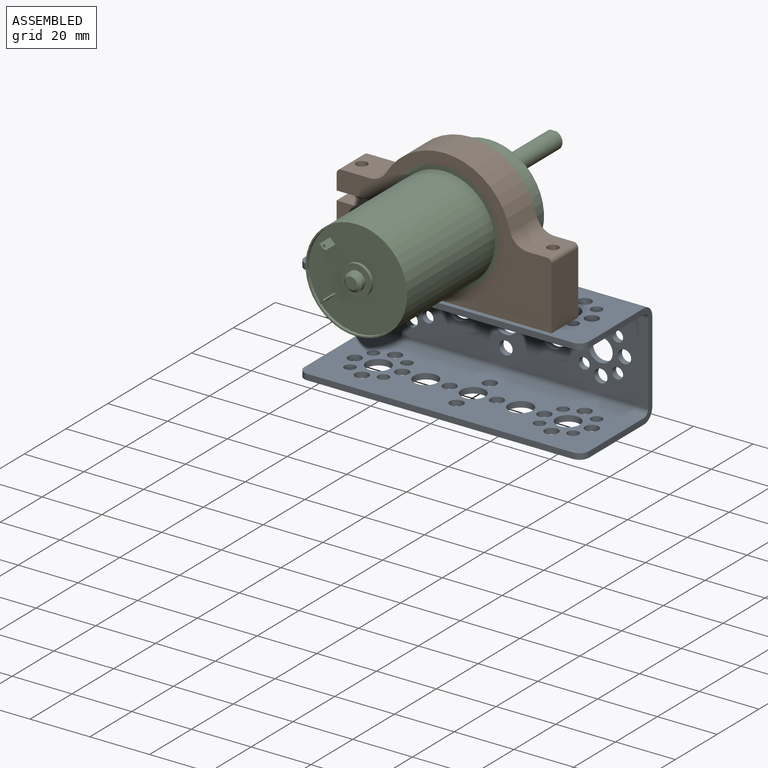
[diagram: assembled view]
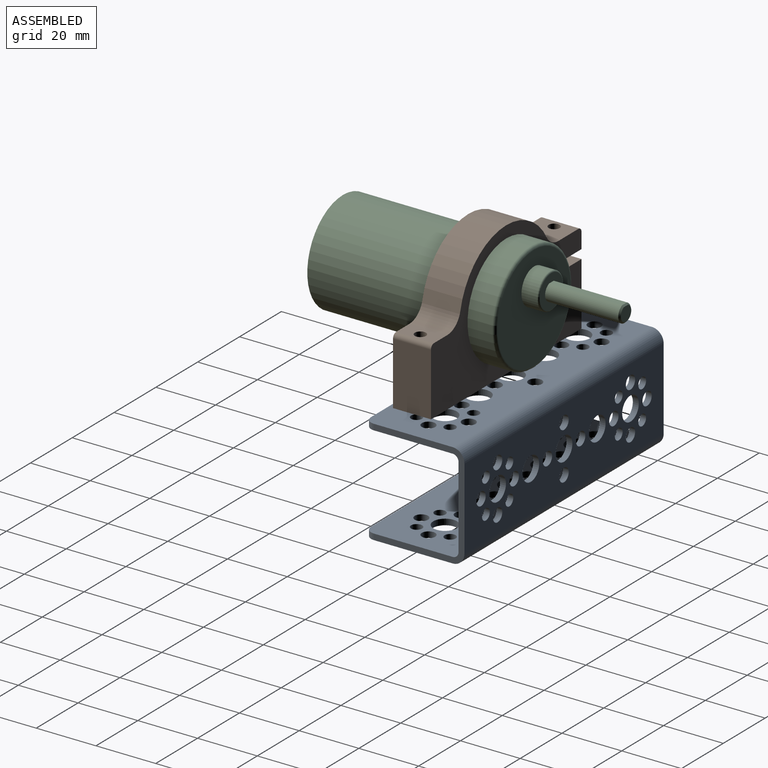
[diagram: assembled view, second angle]
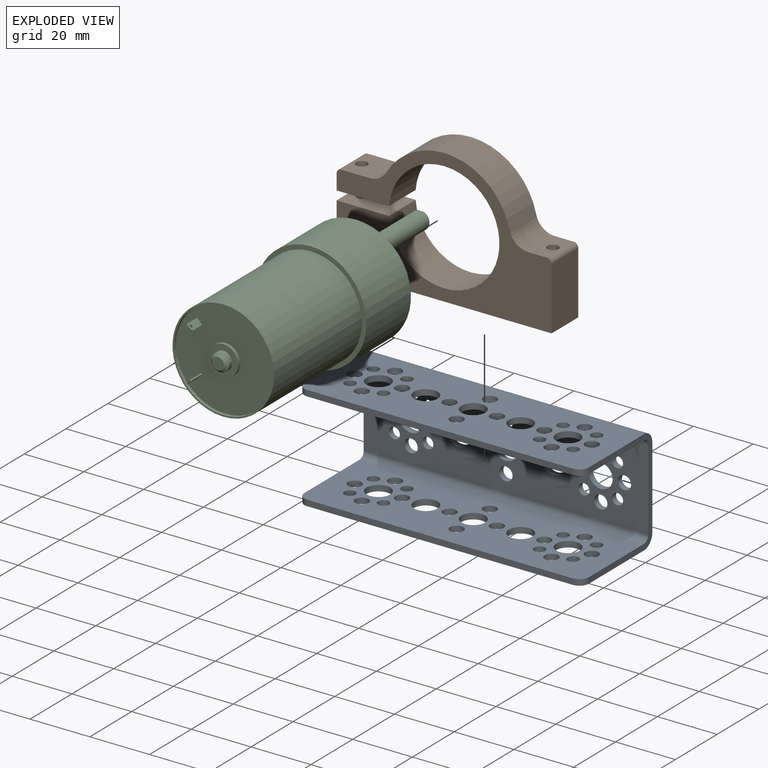
[diagram: exploded view]
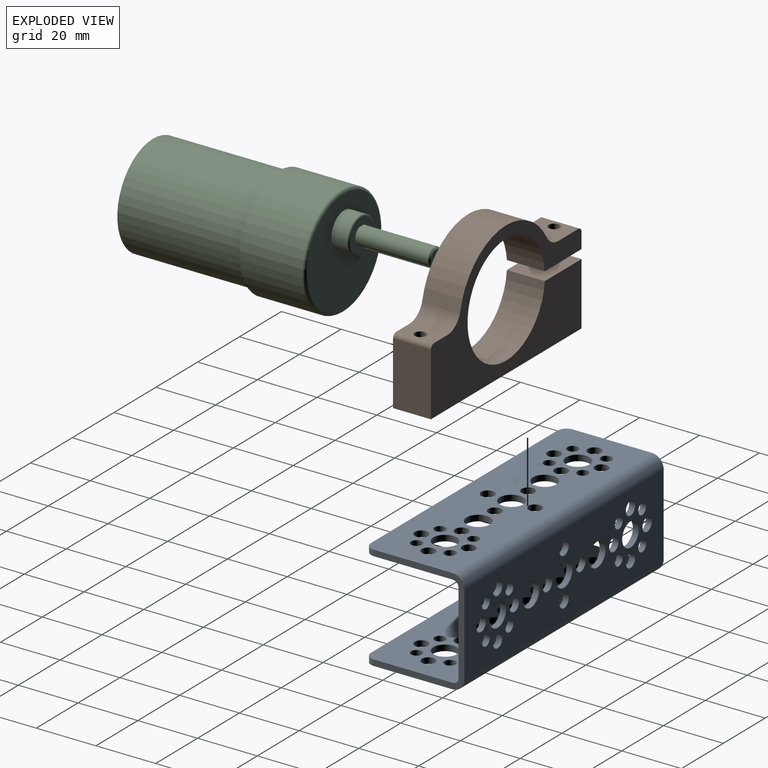
[diagram: exploded view, second angle]
ASSEMBLY  parts=3 mates=2
PART A: 93 faces, bbox 95.3x33.5x35.2 mm
  f0: cylinder r=2.22mm len=4.45mm, axis (0,1,0), area 27.7mm2, adj f55,f57
  f1: cylinder r=2.22mm len=4.45mm, axis (0,1,0), area 27.7mm2, adj f55,f57
  f2: cylinder r=2.22mm len=4.45mm, axis (0,1,0), area 27.7mm2, adj f55,f57
  f3: cylinder r=2.22mm len=4.45mm, axis (0,1,0), area 27.7mm2, adj f55,f57
  f4: cylinder r=2.22mm len=4.45mm, axis (0,1,0), area 27.7mm2, adj f55,f57
  f5: cylinder r=2.22mm len=4.45mm, axis (0,1,0), area 27.7mm2, adj f55,f57
  f6: cylinder r=2.22mm len=4.45mm, axis (0,1,0), area 27.7mm2, adj f55,f57
  f7: cylinder r=2.22mm len=4.45mm, axis (0,1,0), area 27.7mm2, adj f55,f57
  f8: cylinder r=2.22mm len=4.45mm, axis (0,1,0), area 27.7mm2, adj f55,f57
  f9: cylinder r=2.22mm len=4.45mm, axis (0,1,0), area 27.7mm2, adj f55,f57
  f10: cylinder r=2.22mm len=4.45mm, axis (0,1,0), area 27.7mm2, adj f55,f57
  f11: cylinder r=2.22mm len=4.45mm, axis (0,1,0), area 27.7mm2, adj f55,f57
  f12: cylinder r=3.97mm len=7.94mm, axis (0,1,0), area 49.4mm2, adj f55,f57
  f13: cylinder r=3.97mm len=7.94mm, axis (0,1,0), area 49.4mm2, adj f55,f57
  f14: cylinder r=3.97mm len=7.94mm, axis (0,1,0), area 49.4mm2, adj f55,f57
  f15: cylinder r=3.97mm len=7.94mm, axis (0,-1,0), area 49.4mm2, adj f55,f57
  f16: cylinder r=3.97mm len=7.94mm, axis (0,-1,0), area 49.4mm2, adj f55,f57
  f17: cylinder r=1.85mm len=3.71mm, axis (0,-1,0), area 23.1mm2, adj f55,f57
  f18: cylinder r=1.85mm len=3.71mm, axis (0,-1,0), area 23.1mm2, adj f55,f57
  f19: cylinder r=1.85mm len=3.71mm, axis (0,-1,0), area 23.1mm2, adj f55,f57
  f20: cylinder r=1.85mm len=3.71mm, axis (0,-1,0), area 23.1mm2, adj f55,f57
  f21: cylinder r=1.85mm len=3.71mm, axis (0,-1,0), area 23.1mm2, adj f55,f57
  f22: cylinder r=1.85mm len=3.71mm, axis (0,-1,0), area 23.1mm2, adj f55,f57
  f23: cylinder r=1.85mm len=3.71mm, axis (0,-1,0), area 23.1mm2, adj f55,f57
  f24: cylinder r=1.85mm len=3.71mm, axis (0,-1,0), area 23.1mm2, adj f55,f57
  f25: plane 88.9x1.98mm, normal (0,-1,0), area 176.1mm2, adj f51,f52,f53,f59
  f26: cylinder r=2.22mm len=4.45mm, axis (0,0,1), area 27.7mm2, adj f53,f59
  f27: cylinder r=2.22mm len=4.45mm, axis (0,0,1), area 27.7mm2, adj f53,f59
  f28: cylinder r=2.22mm len=4.45mm, axis (0,0,1), area 27.7mm2, adj f53,f59
  f29: cylinder r=2.22mm len=4.45mm, axis (0,0,1), area 27.7mm2, adj f53,f59
  f30: cylinder r=2.22mm len=4.45mm, axis (0,0,1), area 27.7mm2, adj f53,f59
  f31: cylinder r=2.22mm len=4.45mm, axis (0,0,1), area 27.7mm2, adj f53,f59
  f32: cylinder r=2.22mm len=4.45mm, axis (0,0,1), area 27.7mm2, adj f53,f59
  f33: cylinder r=2.22mm len=4.45mm, axis (0,0,1), area 27.7mm2, adj f53,f59
  f34: cylinder r=2.22mm len=4.45mm, axis (0,0,1), area 27.7mm2, adj f53,f59
  f35: cylinder r=2.22mm len=4.45mm, axis (0,0,1), area 27.7mm2, adj f53,f59
  f36: cylinder r=2.22mm len=4.45mm, axis (0,0,1), area 27.7mm2, adj f53,f59
  f37: cylinder r=2.22mm len=4.45mm, axis (0,0,1), area 27.7mm2, adj f53,f59
  f38: cylinder r=3.97mm len=7.94mm, axis (0,0,1), area 49.4mm2, adj f53,f59
  f39: cylinder r=3.97mm len=7.94mm, axis (0,0,1), area 49.4mm2, adj f53,f59
  f40: cylinder r=3.97mm len=7.94mm, axis (0,0,1), area 49.4mm2, adj f53,f59
  f41: cylinder r=3.97mm len=7.94mm, axis (0,0,-1), area 49.4mm2, adj f53,f59
  f42: cylinder r=3.97mm len=7.94mm, axis (0,0,-1), area 49.4mm2, adj f53,f59
  f43: cylinder r=1.85mm len=3.71mm, axis (0,0,-1), area 23.1mm2, adj f53,f59
  f44: cylinder r=1.85mm len=3.71mm, axis (0,0,-1), area 23.1mm2, adj f53,f59
  f45: cylinder r=1.85mm len=3.71mm, axis (0,0,-1), area 23.1mm2, adj f53,f59
  f46: cylinder r=1.85mm len=3.71mm, axis (0,0,-1), area 23.1mm2, adj f53,f59
  f47: cylinder r=1.85mm len=3.71mm, axis (0,0,-1), area 23.1mm2, adj f53,f59
  f48: cylinder r=1.85mm len=3.71mm, axis (0,0,-1), area 23.1mm2, adj f53,f59
  f49: cylinder r=1.85mm len=3.71mm, axis (0,0,-1), area 23.1mm2, adj f53,f59
  f50: cylinder r=1.85mm len=3.71mm, axis (0,0,-1), area 23.1mm2, adj f53,f59
  f51: cylinder r=3.17mm len=3.18mm, axis (0,0,-1), area 9.9mm2, adj f25,f53,f59,f61
  f52: cylinder r=3.17mm len=3.18mm, axis (0,0,-1), area 9.9mm2, adj f25,f53,f59,f63
  f53: plane 95.25x29.51mm, normal (0,0,1), area 2286.4mm2, adj f25,f26,f27,f28,f29,f30,f31,f32
  f54: cylinder r=3.96mm len=95.25mm, axis (1,0,0), area 592.8mm2, adj f53,f55,f61,f63
  f55: plane 95.25x27.27mm, normal (0,1,0), area 2077.3mm2, adj f0,f1,f2,f3,f4,f5,f6,f7
  f56: cylinder r=1.98mm len=95.25mm, axis (-1,0,0), area 296.4mm2, adj f57,f60,f61,f63
  f57: plane 95.25x27.27mm, normal (0,-1,0), area 2077.3mm2, adj f0,f1,f2,f3,f4,f5,f6,f7
  f58: cylinder r=1.98mm len=95.25mm, axis (1,0,0), area 296.4mm2, adj f57,f59,f61,f63
  f59: plane 95.25x29.51mm, normal (0,0,-1), area 2286.4mm2, adj f25,f26,f27,f28,f29,f30,f31,f32
  f60: plane 95.25x29.51mm, normal (0,0,1), area 2286.4mm2, adj f56,f61,f63,f64,f65,f66,f67,f68
  f61: plane 35.19x30.3mm, normal (1,0,0), area 176.9mm2, adj f51,f53,f54,f55,f56,f57,f58,f59
  f62: cylinder r=3.96mm len=95.25mm, axis (-1,0,0), area 592.8mm2, adj f55,f61,f63,f92
  f63: plane 35.19x30.3mm, normal (-1,0,0), area 176.9mm2, adj f52,f53,f54,f55,f56,f57,f58,f59
  f64: cylinder r=3.17mm len=3.18mm, axis (0,0,1), area 9.9mm2, adj f60,f63,f65,f92
  f65: plane 88.9x1.98mm, normal (0,-1,0), area 176.1mm2, adj f60,f64,f66,f92
  f66: cylinder r=3.17mm len=3.18mm, axis (0,0,1), area 9.9mm2, adj f60,f61,f65,f92
  f67: cylinder r=1.85mm len=3.71mm, axis (0,0,1), area 23.1mm2, adj f60,f92
  f68: cylinder r=1.85mm len=3.71mm, axis (0,0,1), area 23.1mm2, adj f60,f92
  f69: cylinder r=1.85mm len=3.71mm, axis (0,0,1), area 23.1mm2, adj f60,f92
  f70: cylinder r=1.85mm len=3.71mm, axis (0,0,1), area 23.1mm2, adj f60,f92
  f71: cylinder r=1.85mm len=3.71mm, axis (0,0,1), area 23.1mm2, adj f60,f92
  f72: cylinder r=1.85mm len=3.71mm, axis (0,0,1), area 23.1mm2, adj f60,f92
  f73: cylinder r=1.85mm len=3.71mm, axis (0,0,1), area 23.1mm2, adj f60,f92
  f74: cylinder r=1.85mm len=3.71mm, axis (0,0,1), area 23.1mm2, adj f60,f92
  f75: cylinder r=3.97mm len=7.94mm, axis (0,0,1), area 49.4mm2, adj f60,f92
  f76: cylinder r=3.97mm len=7.94mm, axis (0,0,1), area 49.4mm2, adj f60,f92
  f77: cylinder r=3.97mm len=7.94mm, axis (0,0,-1), area 49.4mm2, adj f60,f92
  f78: cylinder r=3.97mm len=7.94mm, axis (0,0,-1), area 49.4mm2, adj f60,f92
  f79: cylinder r=3.97mm len=7.94mm, axis (0,0,-1), area 49.4mm2, adj f60,f92
  f80: cylinder r=2.22mm len=4.45mm, axis (0,0,-1), area 27.7mm2, adj f60,f92
  f81: cylinder r=2.22mm len=4.45mm, axis (0,0,-1), area 27.7mm2, adj f60,f92
  f82: cylinder r=2.22mm len=4.45mm, axis (0,0,-1), area 27.7mm2, adj f60,f92
  f83: cylinder r=2.22mm len=4.45mm, axis (0,0,-1), area 27.7mm2, adj f60,f92
  f84: cylinder r=2.22mm len=4.45mm, axis (0,0,-1), area 27.7mm2, adj f60,f92
  f85: cylinder r=2.22mm len=4.45mm, axis (0,0,-1), area 27.7mm2, adj f60,f92
  f86: cylinder r=2.22mm len=4.45mm, axis (0,0,-1), area 27.7mm2, adj f60,f92
  f87: cylinder r=2.22mm len=4.45mm, axis (0,0,-1), area 27.7mm2, adj f60,f92
  f88: cylinder r=2.22mm len=4.45mm, axis (0,0,-1), area 27.7mm2, adj f60,f92
  f89: cylinder r=2.22mm len=4.45mm, axis (0,0,-1), area 27.7mm2, adj f60,f92
  f90: cylinder r=2.22mm len=4.45mm, axis (0,0,-1), area 27.7mm2, adj f60,f92
  f91: cylinder r=2.22mm len=4.45mm, axis (0,0,-1), area 27.7mm2, adj f60,f92
  f92: plane 95.25x29.51mm, normal (0,0,-1), area 2286.4mm2, adj f61,f62,f63,f64,f65,f66,f67,f68
PART B: 19 faces, bbox 72x12.7x45 mm
  f0: plane 17.56x12.7mm, normal (0,0,-1), area 212.3mm2, adj f1,f9,f10,f11,f13
  f1: plane 12.7x5.19mm, normal (-1,0,0), area 65.9mm2, adj f0,f9,f10,f18
  f2: plane 12.7x9.61mm, normal (0,0,1), area 111.2mm2, adj f9,f10,f13,f16,f18
  f3: cylinder r=22.48mm len=41.34mm, axis (0,-1,0), area 682.6mm2, adj f9,f10,f15,f16
  f4: plane 12.7x6.38mm, normal (0,0,1), area 70.2mm2, adj f9,f10,f14,f15,f17
  f5: plane 21x12.7mm, normal (1,0,0), area 266.7mm2, adj f6,f9,f10,f17
  f6: plane 72x12.7mm, normal (0,0,-1), area 892.9mm2, adj f5,f7,f9,f10,f12,f14
  f7: plane 21x12.7mm, normal (-1,0,0), area 266.7mm2, adj f6,f8,f9,f10
  f8: plane 17.56x12.7mm, normal (0,0,1), area 212.3mm2, adj f7,f9,f10,f11,f12
  f9: plane 72x44.98mm, normal (0,1,0), area 1408.4mm2, adj f0,f1,f2,f3,f4,f5,f6,f7
  f10: plane 72x44.98mm, normal (0,-1,0), area 1408.4mm2, adj f0,f1,f2,f3,f4,f5,f6,f7
  f11: cylinder r=18.5mm len=37mm, axis (0,-1,0), area 1438.1mm2, adj f0,f8,f9,f10
  f12: cylinder r=1.85mm len=21mm, axis (0,0,1), area 244.1mm2, adj f6,f8
  f13: cylinder r=1.85mm len=6.69mm, axis (0,0,1), area 77.8mm2, adj f0,f2
  f14: cylinder r=1.85mm len=22.5mm, axis (0,0,1), area 261.5mm2, adj f4,f6
  f15: cylinder r=6.35mm len=12.7mm, axis (0,-1,0), area 108.8mm2, adj f3,f4,f9,f10
  f16: cylinder r=6.35mm len=12.7mm, axis (0,-1,0), area 84mm2, adj f2,f3,f9,f10
  f17: cylinder r=1.5mm len=12.7mm, axis (0,-1,0), area 29.9mm2, adj f4,f5,f9,f10
  f18: cylinder r=1.5mm len=12.7mm, axis (0,-1,0), area 29.9mm2, adj f1,f2,f9,f10
PART C: 37 faces, bbox 40.1x98.8x40.1 mm
  f0: cylinder r=3mm len=24.5mm, axis (0,-1,0), area 407.6mm2, adj f1,f3,f5
  f1: plane 24.5x2.16mm, normal (0,0,-1), area 53mm2, adj f0,f4,f5
  f2: plane 5x4.8mm, normal (0,1,0), area 19.4mm2, adj f3,f4
  f3: cone r=2.5mm half-angle=45deg, axis (0,-1,0), area 10.7mm2, adj f0,f2,f4
  f4: plane 2.17x0.51mm, normal (0,0.71,-0.71), area 1.5mm2, adj f1,f2,f3
  f5: plane 11x11mm, normal (0,1,0), area 67.1mm2, adj f0,f1,f36
  f6: plane 33x33mm, normal (0,-1,0), area 774.3mm2, adj f14,f15,f18,f19,f20,f21,f23,f24
  f7: plane 10x10mm, normal (0,-1,0), area 50.3mm2, adj f15,f16
  f8: plane 37x37mm, normal (0,-1,0), area 167.3mm2, adj f10,f12
  f9: plane 35x35mm, normal (0,1,0), area 849mm2, adj f11,f35
  f10: cylinder r=18.5mm len=37mm, axis (0,-1,0), area 2441mm2, adj f8,f35
  f11: cylinder r=6mm len=12mm, axis (0,-1,0), area 199.8mm2, adj f9,f36
  f12: cylinder r=17mm len=42mm, axis (0,1,0), area 4486.2mm2, adj f8,f13
  f13: plane 34x34mm, normal (0,-1,0), area 52.6mm2, adj f12,f14
  f14: cylinder r=16.5mm len=33mm, axis (0,-1,0), area 103.7mm2, adj f6,f13
  f15: cylinder r=5mm len=10mm, axis (0,1,0), area 31.4mm2, adj f6,f7
  f16: cylinder r=3mm len=6mm, axis (0,1,0), area 28.3mm2, adj f7,f30
  f17: plane 4x4mm, normal (0,-1,0), area 12.6mm2, adj f30
  f18: plane 4.5x0.35mm, normal (-0.71,0,-0.71), area 2.2mm2, adj f6,f19,f21,f33
  f19: plane 5x1.77mm, normal (0.71,0,-0.71), area 11.5mm2, adj f6,f18,f20,f22,f28,f33,f34
  f20: plane 4.5x0.35mm, normal (0.71,0,0.71), area 2.2mm2, adj f6,f19,f21,f34
  f21: plane 5x1.77mm, normal (-0.71,0,0.71), area 11.5mm2, adj f6,f18,f20,f22,f28,f33,f34
  f22: plane 1.41x1.41mm, normal (0,-1,0), area 0.8mm2, adj f19,f21,f33,f34
  f23: plane 4.5x0.35mm, normal (-0.71,0,0.71), area 2.3mm2, adj f6,f24,f26,f32
  f24: plane 5x1.77mm, normal (-0.71,0,-0.71), area 11.5mm2, adj f6,f23,f25,f27,f29,f31,f32
  f25: plane 4.5x0.35mm, normal (0.71,0,-0.71), area 2.2mm2, adj f6,f24,f26,f31
  f26: plane 5x1.77mm, normal (0.71,0,0.71), area 11.5mm2, adj f6,f23,f25,f27,f29,f31,f32
  f27: plane 1.41x1.41mm, normal (0,-1,0), area 0.7mm2, adj f24,f26,f31,f32
  f28: cylinder r=0.5mm len=1.06mm, axis (-0.71,0,0.71), area 1.6mm2, adj f19,f21
  f29: cylinder r=0.5mm len=1.06mm, axis (-0.71,0,-0.71), area 1.6mm2, adj f24,f26
  f30: cone r=2mm half-angle=45deg, axis (0,1,0), area 22.2mm2, adj f16,f17
  f31: plane 0.71x0.71mm, normal (0.5,-0.71,-0.5), area 0.4mm2, adj f24,f25,f26,f27
  f32: plane 0.71x0.71mm, normal (-0.5,-0.71,0.5), area 0.4mm2, adj f23,f24,f26,f27
  f33: plane 0.71x0.71mm, normal (-0.5,-0.71,-0.5), area 0.4mm2, adj f18,f19,f21,f22
  f34: plane 0.71x0.71mm, normal (0.5,-0.71,0.5), area 0.4mm2, adj f19,f20,f21,f22
  f35: torus R=17.5mm, axis (0,1,0), area 179mm2, adj f9,f10
  f36: torus R=5.5mm, axis (0,1,0), area 28.7mm2, adj f5,f11
PLACE A t=(-376.25,-13.98,-85.6)mm
PLACE B t=(-20.43,-45.46,2.17)mm
PLACE C rot(axis=(0,1,0),180deg) t=(-9.29,-45.87,2.28)mm
MATE fastened C.f10 <-> B.f3  axis (0,-1,0) through (-9.29,-45.87,2.28)mm
MATE fastened B.f12 <-> A.f26  axis (0,0,-1) through (-41.29,-39.52,-20.22)mm
